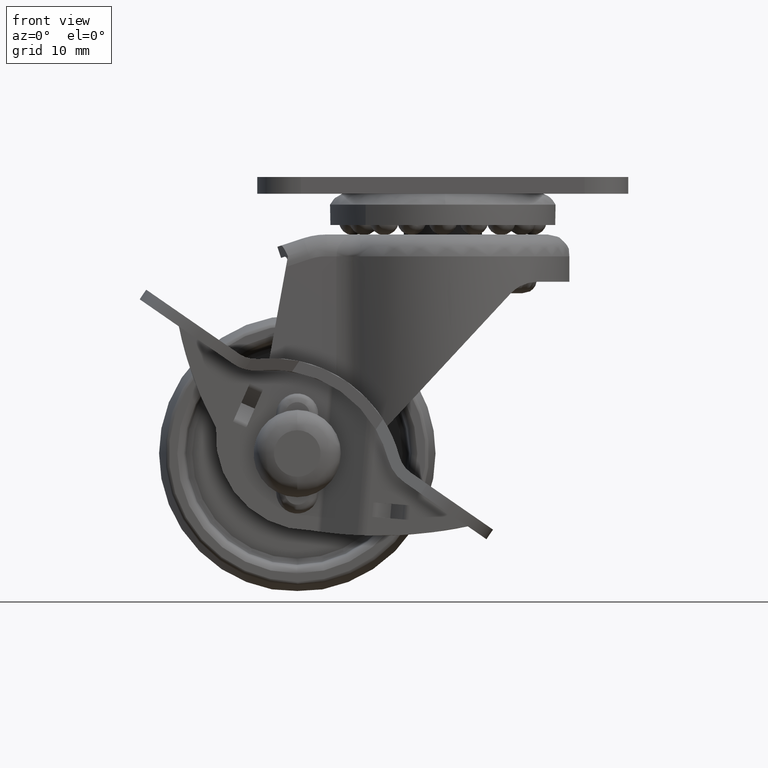
[diagram: clean part render]
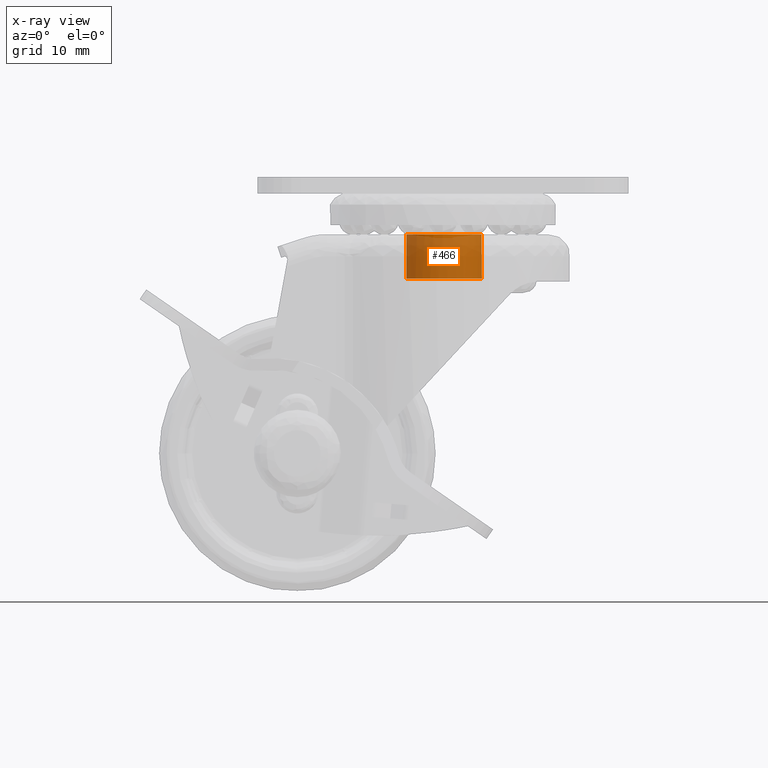
[diagram: x-ray — body ghosted, one internal face saturated and labeled with its STEP entity id]
A machine part, front view, then the same camera in x-ray: the body is ghosted and one INTERNAL B-rep face — a face not visible from any outside direction — is saturated and labeled: STEP entity #466.
In plain terms, the highlighted cylindrical surface (partial cylindrical patch) has radius 5.3661 mm, axis along (0, -0, 1).
Its self-contained STEP definition (entity closure, byte-faithful):
#466=ADVANCED_FACE('',(#2650),#2649,.F.);
#2649=CYLINDRICAL_SURFACE('',#5747,5.36613794505E+00);
#2650=FACE_OUTER_BOUND('',#5748,.T.);
#5744=CARTESIAN_POINT('',(2.00000000000E+01,-4.44551691164E-16,2.70613956451E+01));
#5745=DIRECTION('',(9.14704048613E-17,-2.43529735097E-16,1.00000000000E+00));
#5746=DIRECTION('',(-9.36143578777E-01,-3.51617974392E-01,1.10070748182E-29));
#5747=AXIS2_PLACEMENT_3D('',#5744,#5745,#5746);
#5748=EDGE_LOOP('',(#7832,#7833,#7834,#7835,#7836,#7837));
#7832=ORIENTED_EDGE('',*,*,#8670,.T.);
#7833=ORIENTED_EDGE('',*,*,#8671,.T.);
#7834=ORIENTED_EDGE('',*,*,#8672,.T.);
#7835=ORIENTED_EDGE('',*,*,#8673,.T.);
#7836=ORIENTED_EDGE('',*,*,#8647,.F.);
#7837=ORIENTED_EDGE('',*,*,#8674,.F.);
#8647=EDGE_CURVE('',#12531,#12532,#12533,.T.);
#8670=EDGE_CURVE('',#12687,#12688,#12689,.T.);
#8671=EDGE_CURVE('',#12688,#12695,#12696,.T.);
#8672=EDGE_CURVE('',#12695,#12702,#12703,.T.);
#8673=EDGE_CURVE('',#12702,#12532,#12709,.T.);
#8674=EDGE_CURVE('',#12687,#12531,#12715,.T.);
#12531=VERTEX_POINT('',#17792);
#12532=VERTEX_POINT('',#17793);
#12533=CIRCLE('',#17797,5.36613794511E+00);
#12687=VERTEX_POINT('',#17900);
#12688=VERTEX_POINT('',#17901);
#12689=CIRCLE('',#17905,5.36613794503E+00);
#12695=VERTEX_POINT('',#17906);
#12696=CIRCLE('',#17910,5.36613794512E+00);
#12702=VERTEX_POINT('',#17911);
#12703=CIRCLE('',#17915,5.36613794505E+00);
#12709=(BOUNDED_CURVE() B_SPLINE_CURVE(1,(#17916,#17917),.UNSPECIFIED.,.F.,.F.) B_SPLINE_CURVE_WITH_KNOTS((2,2),(8.33333347523E-02,9.16666668865E-01),.UNSPECIFIED.) CURVE() GEOMETRIC_REPRESENTATION_ITEM() RATIONAL_B_SPLINE_CURVE((1.00000000000E+00,1.00000000000E+00)) REPRESENTATION_ITEM('') );
#12715=(BOUNDED_CURVE() B_SPLINE_CURVE(1,(#17918,#17919),.UNSPECIFIED.,.F.,.F.) B_SPLINE_CURVE_WITH_KNOTS((2,2),(8.33333334804E-02,9.16666666667E-01),.UNSPECIFIED.) CURVE() GEOMETRIC_REPRESENTATION_ITEM() RATIONAL_B_SPLINE_CURVE((7.50000000000E-01,7.50000000000E-01)) REPRESENTATION_ITEM('') );
#17792=CARTESIAN_POINT('',(2.50234755802E+01,1.88683055459E+00,3.01000010000E+01));
#17793=CARTESIAN_POINT('',(1.49765244199E+01,-1.88683055454E+00,3.01000010000E+01));
#17794=CARTESIAN_POINT('',(2.00000000001E+01,-6.20010709440E-11,3.01000010000E+01));
#17795=DIRECTION('',(-5.47540828766E-16,-4.25133933954E-16,-1.00000000000E+00));
#17796=DIRECTION('',(9.36143578770E-01,3.51617974408E-01,-6.62061563673E-16));
#17797=AXIS2_PLACEMENT_3D('',#17794,#17795,#17796);
#17900=CARTESIAN_POINT('',(2.50229608369E+01,1.88820043326E+00,2.40227903965E+01));
#17901=CARTESIAN_POINT('',(2.53661379450E+01,1.13511900000E-16,2.40227903964E+01));
#17902=CARTESIAN_POINT('',(2.00000000000E+01,2.91366930583E-12,2.40227903964E+01));
#17903=DIRECTION('',(4.62200773317E-14,2.93330215218E-11,-1.00000000000E+00));
#17904=DIRECTION('',(-9.36143516466E-01,-3.51618140286E-01,-1.03572911022E-11));
#17905=AXIS2_PLACEMENT_3D('',#17902,#17903,#17904);
#17906=CARTESIAN_POINT('',(2.06195969824E+01,-5.33024727613E+00,2.40227903963E+01));
#17907=CARTESIAN_POINT('',(1.99999999999E+01,6.11999340094E-11,2.40227903961E+01));
#17908=DIRECTION('',(6.76984431311E-11,-3.29346955123E-11,-1.00000000000E+00));
#17909=DIRECTION('',(-1.00000000000E+00,1.14048168574E-11,-6.76984431315E-11));
#17910=AXIS2_PLACEMENT_3D('',#17907,#17908,#17909);
#17911=CARTESIAN_POINT('',(1.49765247160E+01,-1.88683134289E+00,2.40227904012E+01));
#17912=CARTESIAN_POINT('',(2.00000000000E+01,6.21724893790E-15,2.40227903961E+01));
#17913=DIRECTION('',(-9.65496976667E-10,-1.40890010747E-10,-1.00000000000E+00));
#17914=DIRECTION('',(-1.15464229348E-01,9.93311638783E-01,-2.84673231149E-11));
#17915=AXIS2_PLACEMENT_3D('',#17912,#17913,#17914);
#17916=CARTESIAN_POINT('',(1.49765244199E+01,-1.88683055455E+00,2.40227904066E+01));
#17917=CARTESIAN_POINT('',(1.49765244199E+01,-1.88683055455E+00,3.01000010160E+01));
#17918=CARTESIAN_POINT('',(2.50234755801E+01,1.88683055455E+00,2.40227903973E+01));
#17919=CARTESIAN_POINT('',(2.50234755801E+01,1.88683055455E+00,3.01000010000E+01));